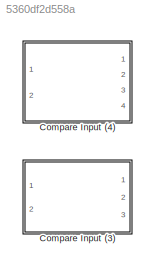
MODEL slx_5360df2d558a
KIND library
CONFIG AbsTol = auto
CONFIG EnableMultiTasking = off
CONFIG FixedStep = auto
CONFIG MaxStep = auto
CONFIG MinStep = auto
CONFIG RelTol = 1e-3
CONFIG SampleTimeConstraint = Unconstrained
CONFIG Solver = VariableStepAuto
CONFIG SolverName = VariableStepAuto
CONFIG StartTime = 0.0
CONFIG StopTime = 10.0
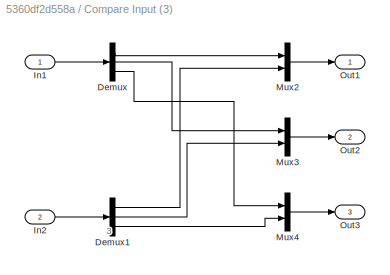
BLOCK [SubSystem] Compare Input (3)
  Ports = [2, 3]
  RequestExecContextInheritance = off
BLOCK [Demux] Compare Input (3)/Demux
  DisplayOption = bar
  Outputs = 3
  Ports = [1, 3]
BLOCK [Demux] Compare Input (3)/Demux1
  DisplayOption = bar
  Outputs = 3
  Ports = [1, 3]
BLOCK [Inport] Compare Input (3)/In1
  IconDisplay = Port number
BLOCK [Inport] Compare Input (3)/In2
  IconDisplay = Port number
  Port = 2
BLOCK [Mux] Compare Input (3)/Mux2
  DisplayOption = bar
  Inputs = 2
  Ports = [2, 1]
BLOCK [Mux] Compare Input (3)/Mux3
  DisplayOption = bar
  Inputs = 2
  Ports = [2, 1]
BLOCK [Mux] Compare Input (3)/Mux4
  DisplayOption = bar
  Inputs = 2
  Ports = [2, 1]
BLOCK [Outport] Compare Input (3)/Out1
  IconDisplay = Port number
BLOCK [Outport] Compare Input (3)/Out2
  IconDisplay = Port number
  Port = 2
BLOCK [Outport] Compare Input (3)/Out3
  IconDisplay = Port number
  Port = 3
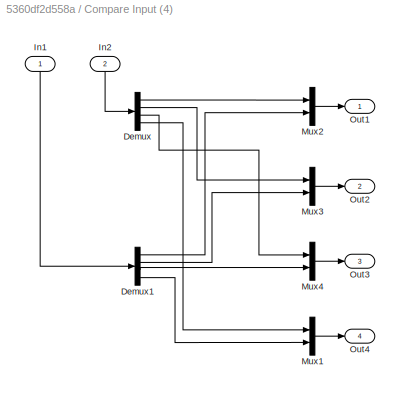
BLOCK [SubSystem] Compare Input (4)
  Ports = [2, 4]
  RequestExecContextInheritance = off
BLOCK [Demux] Compare Input (4)/Demux
  DisplayOption = bar
  Ports = [1, 4]
BLOCK [Demux] Compare Input (4)/Demux1
  DisplayOption = bar
  Ports = [1, 4]
BLOCK [Inport] Compare Input (4)/In1
  IconDisplay = Port number
BLOCK [Inport] Compare Input (4)/In2
  IconDisplay = Port number
  Port = 2
BLOCK [Mux] Compare Input (4)/Mux1
  DisplayOption = bar
  Inputs = 2
  Ports = [2, 1]
BLOCK [Mux] Compare Input (4)/Mux2
  DisplayOption = bar
  Inputs = 2
  Ports = [2, 1]
BLOCK [Mux] Compare Input (4)/Mux3
  DisplayOption = bar
  Inputs = 2
  Ports = [2, 1]
BLOCK [Mux] Compare Input (4)/Mux4
  DisplayOption = bar
  Inputs = 2
  Ports = [2, 1]
BLOCK [Outport] Compare Input (4)/Out1
  IconDisplay = Port number
BLOCK [Outport] Compare Input (4)/Out2
  IconDisplay = Port number
  Port = 2
BLOCK [Outport] Compare Input (4)/Out3
  IconDisplay = Port number
  Port = 3
BLOCK [Outport] Compare Input (4)/Out4
  IconDisplay = Port number
  Port = 4
ANNOTATION Compare Input (3): 3
LINE Compare Input (3)/Demux1:1 -> Compare Input (3)/Mux2:2
LINE Compare Input (3)/Demux1:2 -> Compare Input (3)/Mux3:2
LINE Compare Input (3)/Demux1:3 -> Compare Input (3)/Mux4:2
LINE Compare Input (3)/Demux:1 -> Compare Input (3)/Mux2:1
LINE Compare Input (3)/Demux:2 -> Compare Input (3)/Mux3:1
LINE Compare Input (3)/Demux:3 -> Compare Input (3)/Mux4:1
LINE Compare Input (3)/In1:1 -> Compare Input (3)/Demux:1
LINE Compare Input (3)/In2:1 -> Compare Input (3)/Demux1:1
LINE Compare Input (3)/Mux2:1 -> Compare Input (3)/Out1:1
LINE Compare Input (3)/Mux3:1 -> Compare Input (3)/Out2:1
LINE Compare Input (3)/Mux4:1 -> Compare Input (3)/Out3:1
LINE Compare Input (4)/Demux1:1 -> Compare Input (4)/Mux2:2
LINE Compare Input (4)/Demux1:2 -> Compare Input (4)/Mux3:2
LINE Compare Input (4)/Demux1:3 -> Compare Input (4)/Mux4:2
LINE Compare Input (4)/Demux1:4 -> Compare Input (4)/Mux1:2
LINE Compare Input (4)/Demux:1 -> Compare Input (4)/Mux2:1
LINE Compare Input (4)/Demux:2 -> Compare Input (4)/Mux3:1
LINE Compare Input (4)/Demux:3 -> Compare Input (4)/Mux4:1
LINE Compare Input (4)/Demux:4 -> Compare Input (4)/Mux1:1
LINE Compare Input (4)/In1:1 -> Compare Input (4)/Demux1:1
LINE Compare Input (4)/In2:1 -> Compare Input (4)/Demux:1
LINE Compare Input (4)/Mux1:1 -> Compare Input (4)/Out4:1
LINE Compare Input (4)/Mux2:1 -> Compare Input (4)/Out1:1
LINE Compare Input (4)/Mux3:1 -> Compare Input (4)/Out2:1
LINE Compare Input (4)/Mux4:1 -> Compare Input (4)/Out3:1
